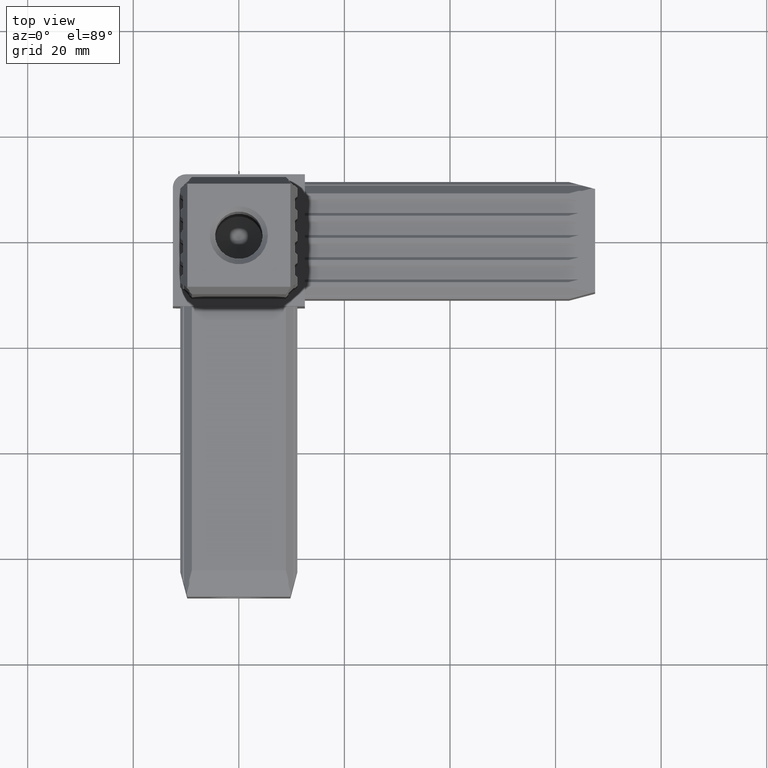
[diagram: clean part render]
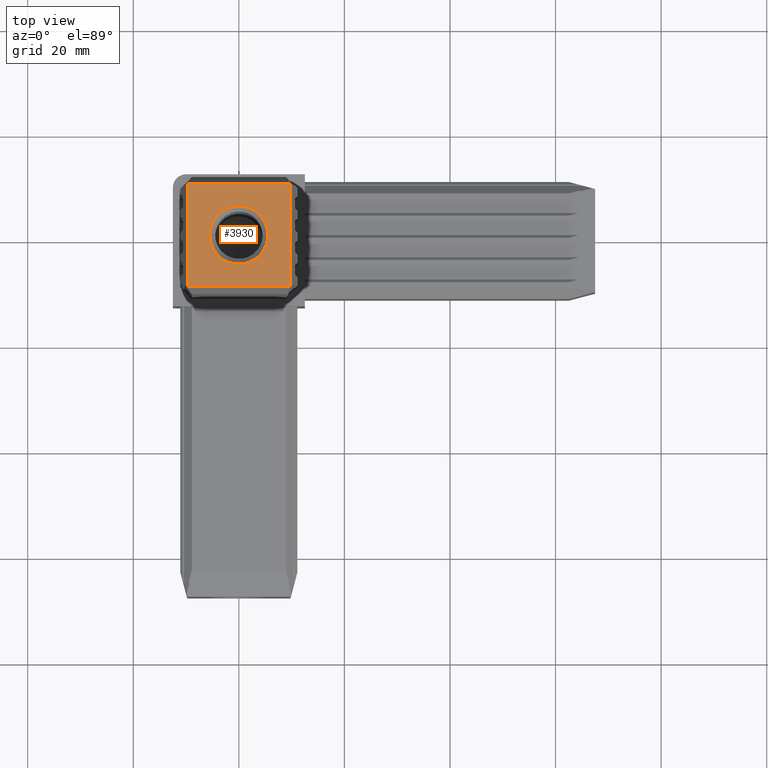
[diagram: same view with one face highlighted and labeled with its STEP entity id]
A machine part, top view. The second image highlights one B-rep face of the part: STEP entity #3930.
In plain terms, the highlighted planar face has unit normal (0, 0, 1).
Its self-contained STEP definition (entity closure, byte-faithful):
#16=FACE_BOUND('',#422,.T.);
#22=PLANE('',#4157);
#219=FACE_OUTER_BOUND('',#421,.T.);
#421=EDGE_LOOP('',(#2763,#2764,#2765,#2766));
#422=EDGE_LOOP('',(#2767));
#629=LINE('',#5403,#1193);
#630=LINE('',#5405,#1194);
#631=LINE('',#5407,#1195);
#632=LINE('',#5408,#1196);
#1193=VECTOR('',#4393,10.);
#1194=VECTOR('',#4394,10.);
#1195=VECTOR('',#4395,10.);
#1196=VECTOR('',#4396,10.);
#1755=CIRCLE('',#4151,5.5);
#1776=VERTEX_POINT('',#5387);
#1781=VERTEX_POINT('',#5401);
#1782=VERTEX_POINT('',#5402);
#1783=VERTEX_POINT('',#5404);
#1784=VERTEX_POINT('',#5406);
#2167=EDGE_CURVE('',#1776,#1776,#1755,.T.);
#2174=EDGE_CURVE('',#1781,#1782,#629,.T.);
#2175=EDGE_CURVE('',#1783,#1781,#630,.T.);
#2176=EDGE_CURVE('',#1784,#1783,#631,.T.);
#2177=EDGE_CURVE('',#1782,#1784,#632,.T.);
#2763=ORIENTED_EDGE('',*,*,#2174,.F.);
#2764=ORIENTED_EDGE('',*,*,#2175,.F.);
#2765=ORIENTED_EDGE('',*,*,#2176,.F.);
#2766=ORIENTED_EDGE('',*,*,#2177,.F.);
#2767=ORIENTED_EDGE('',*,*,#2167,.F.);
#3930=ADVANCED_FACE('',(#219,#16),#22,.T.);
#4151=AXIS2_PLACEMENT_3D('',#5388,#4377,#4378);
#4157=AXIS2_PLACEMENT_3D('',#5400,#4391,#4392);
#4377=DIRECTION('center_axis',(0.,0.,1.));
#4378=DIRECTION('ref_axis',(-1.,0.,0.));
#4391=DIRECTION('center_axis',(0.,0.,1.));
#4392=DIRECTION('ref_axis',(1.,0.,0.));
#4393=DIRECTION('',(0.,1.,0.));
#4394=DIRECTION('',(-1.,1.99590656112393E-15,0.));
#4395=DIRECTION('',(0.,-1.,0.));
#4396=DIRECTION('',(1.,-1.99590656112384E-15,0.));
#5387=CARTESIAN_POINT('',(5.5,6.73555739531044E-16,67.5));
#5388=CARTESIAN_POINT('Origin',(0.,0.,67.5));
#5400=CARTESIAN_POINT('Origin',(1.04050768287409E-13,4.13643471870255E-14,
67.5));
#5401=CARTESIAN_POINT('',(-9.76025403784416,-9.7602540378444,67.5));
#5402=CARTESIAN_POINT('',(-9.76025403784416,9.76025403784437,67.5));
#5403=CARTESIAN_POINT('',(-9.76025403784416,0.25000000000006,67.5));
#5404=CARTESIAN_POINT('',(9.76025403784439,-9.76025403784444,67.5));
#5405=CARTESIAN_POINT('',(-4.44999999999984,-9.76025403784441,67.5));
#5406=CARTESIAN_POINT('',(9.76025403784439,9.76025403784433,67.5));
#5407=CARTESIAN_POINT('',(9.76025403784439,-2.34999999999982,67.5));
#5408=CARTESIAN_POINT('',(4.4500000000003,9.76025403784434,67.5));